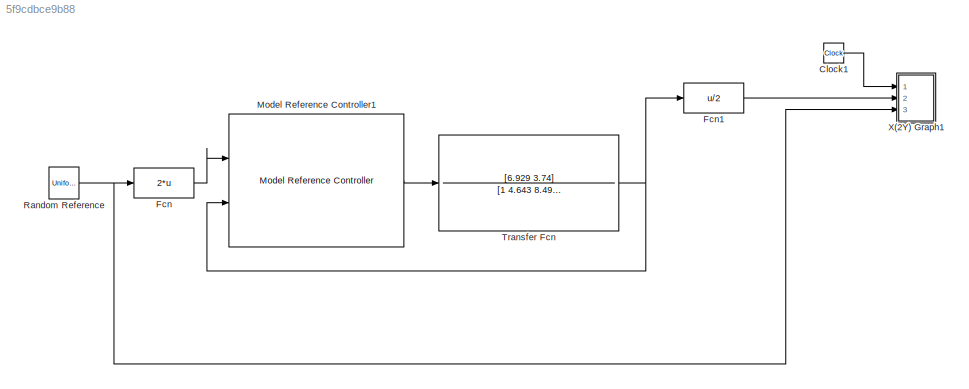
MODEL slx_5f9cdbce9b88
KIND model
CONFIG AbsTol = auto
CONFIG EnableMultiTasking = off
CONFIG FixedStep = auto
CONFIG MaxStep = auto
CONFIG MinStep = auto
CONFIG RelTol = 1e-3
CONFIG SampleTimeConstraint = Unconstrained
CONFIG Solver = VariableStepAuto
CONFIG SolverName = VariableStepAuto
CONFIG StartTime = 0.0
CONFIG StopTime = 60
BLOCK [Clock] Clock1
BLOCK [Fcn] Fcn
  Expr = 2*u
BLOCK [Fcn] Fcn1
  Expr = u/2
BLOCK [Reference] Model Reference Controller1  REF=neural/Control Systems/Model Reference Controller
  Ports = [2, 1]
  SourceBlock = neural/Control Systems/Model Reference Controller
  SourceProductBaseCode = Missing
  SourceProductName = MATLAB Runtime - Deep Learning Toolbox
  SourceType = NN Model Reference Control
BLOCK [UniformRandomNumber] Random Reference
  Maximum = 90
  Minimum = 0
  SampleTime = 10
  Seed = round(now)
BLOCK [TransferFcn] Transfer Fcn
  Denominator = [1 4.643 8.499 3.584]
  Numerator = [6.929 3.74]
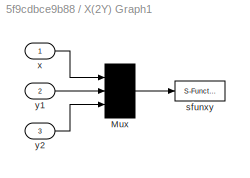
BLOCK [SubSystem] X(2Y) Graph1
  CopyFcn = sfunxy2([],[],[],'CopyBlock')
  DeleteFcn = sfunxy2([],[],[],'DeleteBlock')
  LoadFcn = sfunxy2([],[],[],'LoadBlock')
  NameChangeFcn = sfunxy2([],[],[],'NameChange')
  Ports = [3]
  RequestExecContextInheritance = off
  StartFcn = sfunxy2([],[],[],'Start')
  StopFcn = sfunxy2([],[],[],'Stop')
BLOCK [Mux] X(2Y) Graph1/Mux
  Inputs = 3
  Ports = [3, 1]
BLOCK [S-Function] X(2Y) Graph1/sfunxy
  EnableBusSupport = off
  FunctionName = sfunxy2
  Parameters = [xmin xmax ymin ymax], st
  Ports = [1]
  SFcnIsStateOwnerBlock = off
  SFunctionDeploymentMode = off
BLOCK [Inport] X(2Y) Graph1/x
  IconDisplay = Port number
BLOCK [Inport] X(2Y) Graph1/y1
  IconDisplay = Port number
  Port = 2
BLOCK [Inport] X(2Y) Graph1/y2
  IconDisplay = Port number
  Port = 3
LINE Clock1:1 -> X(2Y) Graph1:1
LINE Fcn1:1 -> X(2Y) Graph1:2
LINE Fcn:1 -> Model Reference Controller1:1
LINE Model Reference Controller1:1 -> Transfer Fcn:1
NET Random Reference:1 -> Fcn:1, X(2Y) Graph1:3
NET Transfer Fcn:1 -> Fcn1:1, Model Reference Controller1:2
note: NET lines group one-source signal fan-out (src -> all destinations, sorted); 1:1 wires keep LINE
